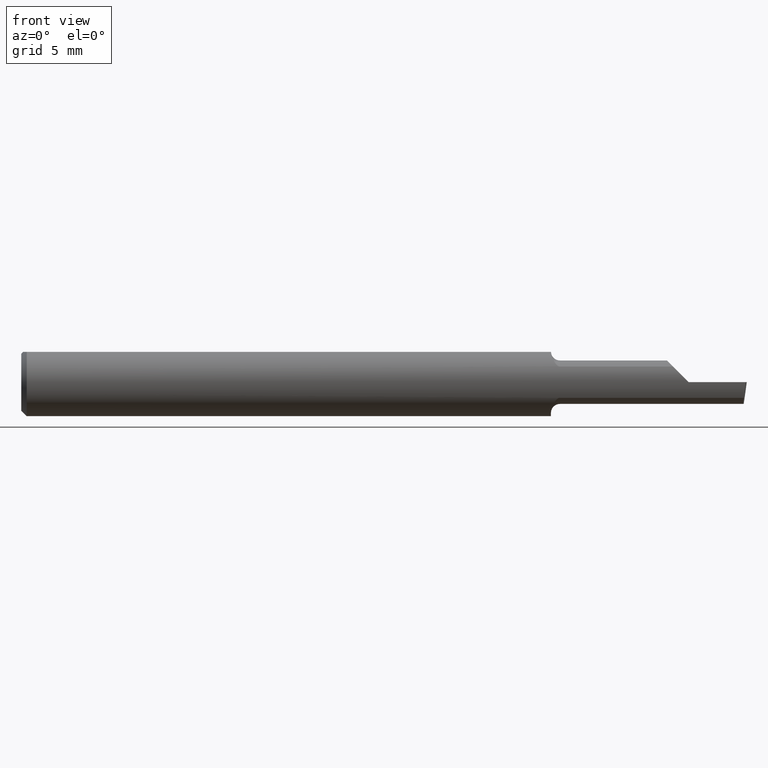
[diagram: clean part render]
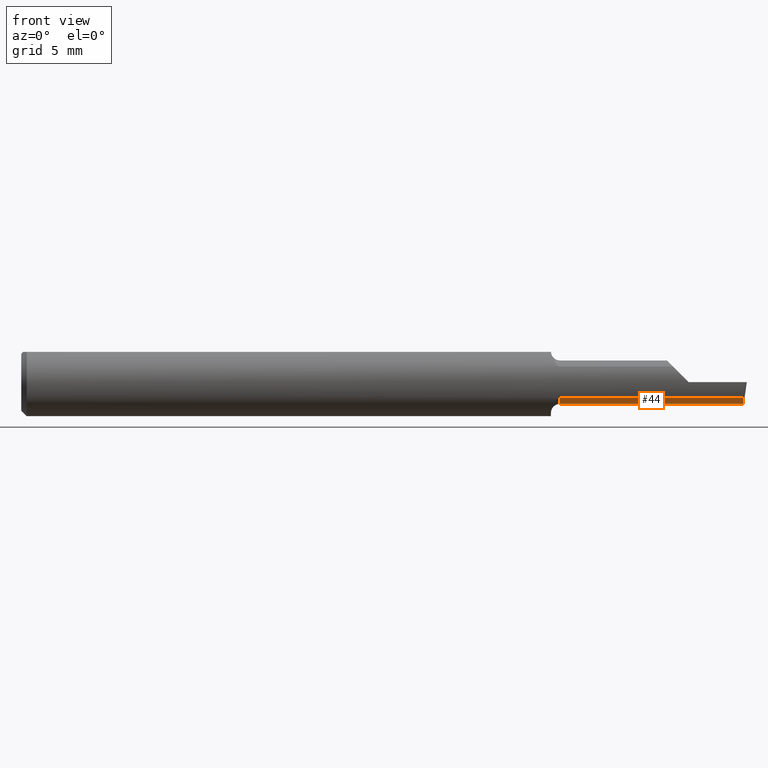
[diagram: same view with one face highlighted and labeled with its STEP entity id]
A machine part, front view. The second image highlights one B-rep face of the part: STEP entity #44.
In plain terms, the highlighted cylindrical surface (edge-blend (fillet) strip) has radius 1.5215 mm, axis along (-1, -0, -0).
Its self-contained STEP definition (entity closure, byte-faithful):
#2 = CARTESIAN_POINT ( 'NONE',  ( 1.990393312970557327, -0.04150000000000000216, -0.05990000000000000185 ) ) ;
#11 = CARTESIAN_POINT ( 'NONE',  ( 1.990322576363892759, -0.07176861043311237587, -0.05402281578110740279 ) ) ;
#44 = ADVANCED_FACE ( 'NONE', ( #97 ), #681, .T. ) ;
#65 = DIRECTION ( 'NONE',  ( 0.0000000000000000000, 0.0000000000000000000, 1.000000000000000000 ) ) ;
#76 = EDGE_LOOP ( 'NONE', ( #158, #371, #190, #136, #597 ) ) ;
#89 = EDGE_CURVE ( 'NONE', #570, #720, #432, .T. ) ;
#97 = FACE_OUTER_BOUND ( 'NONE', #76, .T. ) ;
#106 = CARTESIAN_POINT ( 'NONE',  ( 1.991365359011875169, -0.08307469879518077083, -0.04312255117789289688 ) ) ;
#112 = AXIS2_PLACEMENT_3D ( 'NONE', #338, #641, #395 ) ;
#136 = ORIENTED_EDGE ( 'NONE', *, *, #615, .T. ) ;
#147 = EDGE_CURVE ( 'NONE', #411, #570, #659, .T. ) ;
#158 = ORIENTED_EDGE ( 'NONE', *, *, #147, .F. ) ;
#189 = VECTOR ( 'NONE', #448, 39.37007874015748143 ) ;
#190 = ORIENTED_EDGE ( 'NONE', *, *, #544, .F. ) ;
#206 = LINE ( 'NONE', #531, #189 ) ;
#230 = CARTESIAN_POINT ( 'NONE',  ( 1.484999999999999876, -0.04149999999999998829, -0.05989999999999996022 ) ) ;
#234 = CARTESIAN_POINT ( 'NONE',  ( 1.484999999999999876, -0.04150000000000000216, 0.0000000000000000000 ) ) ;
#241 = DIRECTION ( 'NONE',  ( -1.000000000000000000, -0.0000000000000000000, -0.0000000000000000000 ) ) ;
#272 = CARTESIAN_POINT ( 'NONE',  ( 1.669999999999999929, -0.08307469879518077083, -0.04312255117789289688 ) ) ;
#275 = VECTOR ( 'NONE', #581, 39.37007874015748143 ) ;
#286 = DIRECTION ( 'NONE',  ( -1.000000000000000000, -0.0000000000000000000, -0.0000000000000000000 ) ) ;
#298 = CARTESIAN_POINT ( 'NONE',  ( 1.854999999999999982, -0.04150000000000000216, -0.05990000000000000185 ) ) ;
#338 = CARTESIAN_POINT ( 'NONE',  ( 0.0000000000000000000, -0.04150000000000000216, 0.0000000000000000000 ) ) ;
#371 = ORIENTED_EDGE ( 'NONE', *, *, #388, .F. ) ;
#375 = VECTOR ( 'NONE', #286, 39.37007874015748143 ) ;
#388 = EDGE_CURVE ( 'NONE', #719, #411, #206, .T. ) ;
#395 = DIRECTION ( 'NONE',  ( 0.0000000000000000000, 0.0000000000000000000, 1.000000000000000000 ) ) ;
#411 = VERTEX_POINT ( 'NONE', #298 ) ;
#432 = CIRCLE ( 'NONE', #434, 0.05989999999999995328 ) ;
#434 = AXIS2_PLACEMENT_3D ( 'NONE', #234, #241, #65 ) ;
#448 = DIRECTION ( 'NONE',  ( -1.000000000000000000, 5.691349986800549142E-18, -0.0000000000000000000 ) ) ;
#500 = VERTEX_POINT ( 'NONE', #106 ) ;
#506 = CARTESIAN_POINT ( 'NONE',  ( 1.990393312970557327, -0.04150000000000000216, -0.05990000000000000185 ) ) ;
#511 = CARTESIAN_POINT ( 'NONE',  ( 1.991365359011875169, -0.08307469879518077083, -0.04312255117789289688 ) ) ;
#530 = LINE ( 'NONE', #272, #375 ) ;
#531 = CARTESIAN_POINT ( 'NONE',  ( 2.000000000000000000, -0.04150000000000000216, -0.05990000000000000185 ) ) ;
#544 = EDGE_CURVE ( 'NONE', #500, #719, #635, .T. ) ;
#564 = CARTESIAN_POINT ( 'NONE',  ( 1.989982066092358393, -0.05720488466914005338, -0.05989999999999997410 ) ) ;
#570 = VERTEX_POINT ( 'NONE', #230 ) ;
#581 = DIRECTION ( 'NONE',  ( -1.000000000000000000, -0.0000000000000000000, -0.0000000000000000000 ) ) ;
#597 = ORIENTED_EDGE ( 'NONE', *, *, #89, .F. ) ;
#615 = EDGE_CURVE ( 'NONE', #500, #720, #530, .T. ) ;
#620 = CARTESIAN_POINT ( 'NONE',  ( 0.0000000000000000000, -0.04149999999999999523, -0.05989999999999998104 ) ) ;
#635 =( BOUNDED_CURVE ( )  B_SPLINE_CURVE ( 3, ( #511, #11, #564, #2 ),
 .UNSPECIFIED., .F., .T. ) 
 B_SPLINE_CURVE_WITH_KNOTS ( ( 4, 4 ),
 ( 5.726109673675772171, 6.493234751459700860 ),
 .UNSPECIFIED. ) 
 CURVE ( )  GEOMETRIC_REPRESENTATION_ITEM ( )  RATIONAL_B_SPLINE_CURVE ( ( 1.000000000000000000, 0.9515582177473689285, 0.9515582177473689285, 1.000000000000000000 ) ) 
 REPRESENTATION_ITEM ( '' )  );
#641 = DIRECTION ( 'NONE',  ( -1.000000000000000000, -0.0000000000000000000, -0.0000000000000000000 ) ) ;
#659 = LINE ( 'NONE', #620, #275 ) ;
#676 = CARTESIAN_POINT ( 'NONE',  ( 1.484999999999999876, -0.08307469879518099287, -0.04312255117789264708 ) ) ;
#681 = CYLINDRICAL_SURFACE ( 'NONE', #112, 0.05989999999999998104 ) ;
#719 = VERTEX_POINT ( 'NONE', #506 ) ;
#720 = VERTEX_POINT ( 'NONE', #676 ) ;